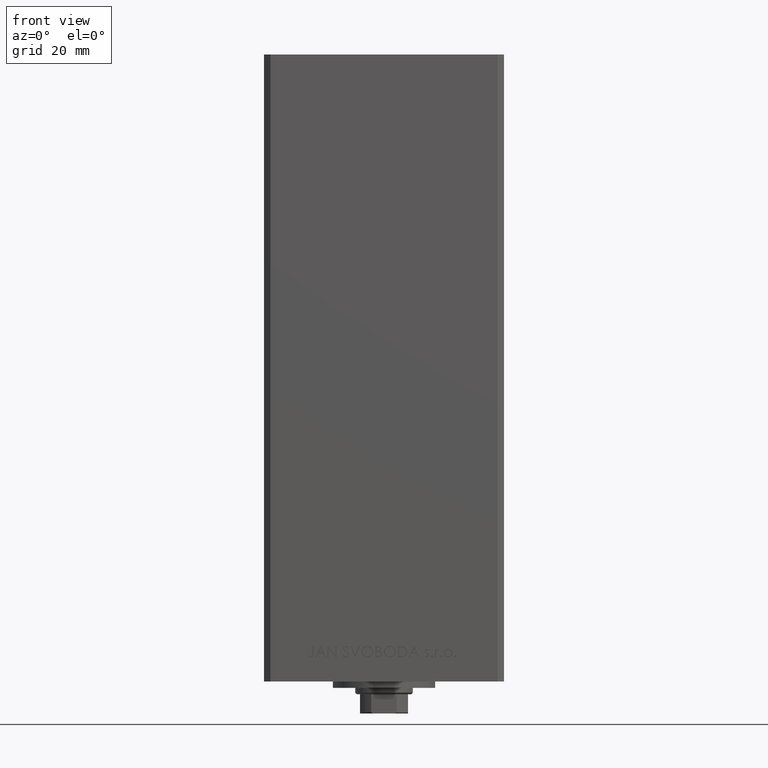
[diagram: clean part render]
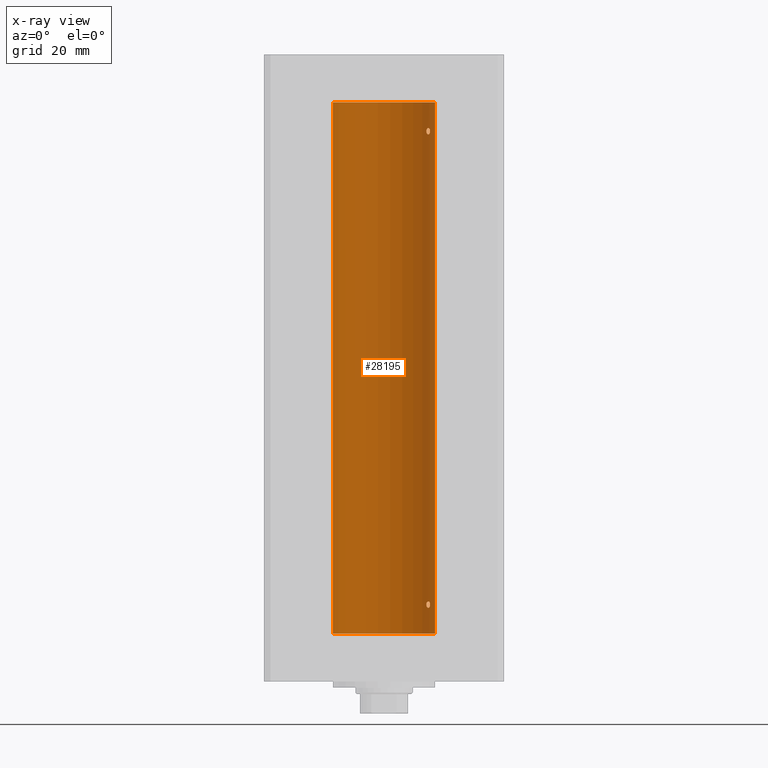
[diagram: x-ray — body ghosted, one internal face saturated and labeled with its STEP entity id]
A machine part, front view, then the same camera in x-ray: the body is ghosted and one INTERNAL B-rep face — a face not visible from any outside direction — is saturated and labeled: STEP entity #28195.
In plain terms, the highlighted cylindrical surface (partial cylindrical patch) has radius 16 mm, axis along (-0, -0, -1).
Its self-contained STEP definition (entity closure, byte-faithful):
#275 = CARTESIAN_POINT ( 'NONE',  ( -16.00000000000000000, 0.000000000000000000, 166.0000000000000000 ) ) ;
#1014 = CARTESIAN_POINT ( 'NONE',  ( 13.22875655532295447, 8.999999999999998224, 8.999999999999994671 ) ) ;
#1373 = VERTEX_POINT ( 'NONE', #17630 ) ;
#1415 = CARTESIAN_POINT ( 'NONE',  ( 13.49787029139620920, 8.591848682074017418, 8.183814587142569152 ) ) ;
#1538 = CARTESIAN_POINT ( 'NONE',  ( 14.38749456993875775, 6.999999999998771649, 156.9999999999994600 ) ) ;
#1788 = CARTESIAN_POINT ( 'NONE',  ( 14.38374727663542707, 7.007716049903077504, 156.8576079294365400 ) ) ;
#1917 = CARTESIAN_POINT ( 'NONE',  ( 14.17516445690067428, 7.421373518623910037, 8.173695665549439937 ) ) ;
#2169 = CARTESIAN_POINT ( 'NONE',  ( 14.38749456993875953, 6.999999999998769873, 8.999999999999467093 ) ) ;
#2493 = CARTESIAN_POINT ( 'NONE',  ( 0.000000000000000000, 0.000000000000000000, 0.000000000000000000 ) ) ;
#2928 = CARTESIAN_POINT ( 'NONE',  ( 13.22875655532295447, 8.999999999999996447, 156.9999999999999716 ) ) ;
#3766 = EDGE_LOOP ( 'NONE', ( #44757, #41086 ) ) ;
#4335 = ORIENTED_EDGE ( 'NONE', *, *, #7984, .F. ) ;
#5534 = CARTESIAN_POINT ( 'NONE',  ( 14.27574973237574874, 7.225997637813491359, 156.3530782107463040 ) ) ;
#5667 = CARTESIAN_POINT ( 'NONE',  ( 13.77746685470184040, 8.136441676695669756, 8.001713142955473757 ) ) ;
#5928 = CARTESIAN_POINT ( 'NONE',  ( 13.55739033881265065, 8.499771822136686694, 9.902983336413296200 ) ) ;
#6571 = FACE_BOUND ( 'NONE', #24471, .T. ) ;
#6904 = CARTESIAN_POINT ( 'NONE',  ( 14.36932461189096877, 7.037242368448794139, 8.720713977669424466 ) ) ;
#7484 = CARTESIAN_POINT ( 'NONE',  ( 14.27601081693604179, 7.225489892961972416, 157.6464466749833093 ) ) ;
#7984 = EDGE_CURVE ( 'NONE', #46283, #47138, #34308, .T. ) ;
#8546 = CARTESIAN_POINT ( 'NONE',  ( 13.32443414199769194, 8.857985377928093484, 156.4686058303161644 ) ) ;
#9039 = CARTESIAN_POINT ( 'NONE',  ( 13.22875655532295447, 8.999999999999996447, 156.9999999999999716 ) ) ;
#9157 = CARTESIAN_POINT ( 'NONE',  ( 13.25010819131475159, 8.968783812673564171, 8.717198662283735189 ) ) ;
#9381 = DIRECTION ( 'NONE',  ( 1.000000000000000000, 0.000000000000000000, 0.000000000000000000 ) ) ;
#10149 = CARTESIAN_POINT ( 'NONE',  ( 14.12440581436493225, 7.519967855344579455, 9.916845667547992349 ) ) ;
#10475 = CARTESIAN_POINT ( 'NONE',  ( 13.37722806521492203, 8.778496895713763237, 157.6404922157021815 ) ) ;
#10771 = VERTEX_POINT ( 'NONE', #40232 ) ;
#11037 = CYLINDRICAL_SURFACE ( 'NONE', #16188, 16.00000000000000000 ) ;
#11282 = EDGE_CURVE ( 'NONE', #10771, #1373, #34914, .T. ) ;
#11722 = B_SPLINE_CURVE_WITH_KNOTS ( 'NONE', 3,
 ( #21937, #29902, #44618, #14702, #7484, #33639, #49341, #26159, #33876, #10475, #41369, #18198, #30140, #33141 ),
 .UNSPECIFIED., .F., .F.,
 ( 4, 2, 2, 2, 2, 2, 4 ),
 ( 0.003377516961122441295, 0.003798778705083836419, 0.004220040449045231977, 0.005062563936968072532, 0.005905087424890913088, 0.006326349168852335100, 0.006747610912813756245 ),
 .UNSPECIFIED. ) ;
#12418 = CARTESIAN_POINT ( 'NONE',  ( 13.22875655532296157, 9.000000000000000000, 8.857026260935734641 ) ) ;
#12522 = CARTESIAN_POINT ( 'NONE',  ( 13.92009581174527355, 7.889943515799701323, 155.9984609092138044 ) ) ;
#13621 = CARTESIAN_POINT ( 'NONE',  ( 0.000000000000000000, 0.000000000000000000, 166.0000000000000000 ) ) ;
#13968 = DIRECTION ( 'NONE',  ( -0.000000000000000000, 0.000000000000000000, 1.000000000000000000 ) ) ;
#14420 = ORIENTED_EDGE ( 'NONE', *, *, #11282, .T. ) ;
#14702 = CARTESIAN_POINT ( 'NONE',  ( 14.31678893103185679, 7.143775209822727845, 157.5347800480706724 ) ) ;
#15552 = VERTEX_POINT ( 'NONE', #40019 ) ;
#16030 = CARTESIAN_POINT ( 'NONE',  ( 13.98799506618805211, 7.768796316246563194, 156.0189078186198799 ) ) ;
#16188 = AXIS2_PLACEMENT_3D ( 'NONE', #41452, #32974, #33720 ) ;
#16273 = CARTESIAN_POINT ( 'NONE',  ( 14.38749456993829057, 7.000000000000029310, 156.9292911095188288 ) ) ;
#16393 = CARTESIAN_POINT ( 'NONE',  ( 13.92009581174526822, 7.889943515799717311, 7.998460909213807035 ) ) ;
#16644 = CARTESIAN_POINT ( 'NONE',  ( 14.38749456993835807, 6.999999999999894307, 9.141106977037484427 ) ) ;
#16869 = DIRECTION ( 'NONE',  ( -0.000000000000000000, 0.000000000000000000, 1.000000000000000000 ) ) ;
#16884 = CARTESIAN_POINT ( 'NONE',  ( 13.70633586603034715, 8.255576010093811590, 8.025328610501505366 ) ) ;
#17133 = CARTESIAN_POINT ( 'NONE',  ( 14.27574973237574696, 7.225997637813494023, 8.353078210746339494 ) ) ;
#17226 = CARTESIAN_POINT ( 'NONE',  ( 16.00000000000000000, 1.959434878635765131E-15, 0.000000000000000000 ) ) ;
#17381 = CARTESIAN_POINT ( 'NONE',  ( 13.22875655532295625, 9.000000000000000000, 9.142659515501296852 ) ) ;
#17630 = CARTESIAN_POINT ( 'NONE',  ( -16.00000000000000000, 0.000000000000000000, 0.000000000000000000 ) ) ;
#18198 = CARTESIAN_POINT ( 'NONE',  ( 13.25022586032983618, 8.968609469449805971, 157.2832896389629127 ) ) ;
#18991 = B_SPLINE_CURVE_WITH_KNOTS ( 'NONE', 3,
 ( #9039, #20026, #35936, #8546, #24469, #20498, #43658, #39188, #39676, #12522, #16030, #19772, #28459, #5534, #31230, #23502, #24231, #1788, #16273, #1538 ),
 .UNSPECIFIED., .F., .F.,
 ( 4, 2, 2, 2, 2, 2, 2, 2, 2, 4 ),
 ( 2.818592028051833686E-17, 0.0004221896201403299359, 0.0008443792402806316825, 0.001266568860420933538, 0.001688758480561235176, 0.002110948100701536597, 0.002533137720841838886, 0.002955327340982140307, 0.003166422151052290801, 0.003377516961122441295 ),
 .UNSPECIFIED. ) ;
#19772 = CARTESIAN_POINT ( 'NONE',  ( 14.11701305531884465, 7.531808851198014132, 156.1073667830907539 ) ) ;
#20005 = AXIS2_PLACEMENT_3D ( 'NONE', #2493, #13968, #25683 ) ;
#20026 = CARTESIAN_POINT ( 'NONE',  ( 13.22875655532295802, 8.999999999999998224, 156.8570262609357258 ) ) ;
#20498 = CARTESIAN_POINT ( 'NONE',  ( 13.49787029139622696, 8.591848682073997878, 156.1838145871425638 ) ) ;
#20623 = EDGE_CURVE ( 'NONE', #47138, #46283, #43639, .T. ) ;
#20897 = CARTESIAN_POINT ( 'NONE',  ( 13.32447566991143439, 8.857922402414480700, 9.531438119903825168 ) ) ;
#21271 = ORIENTED_EDGE ( 'NONE', *, *, #20623, .F. ) ;
#21364 = CARTESIAN_POINT ( 'NONE',  ( 14.38374727663542707, 7.007716049903074840, 8.857607929436484895 ) ) ;
#21861 = CARTESIAN_POINT ( 'NONE',  ( 14.38749456993875953, 6.999999999998769873, 8.999999999999467093 ) ) ;
#21937 = CARTESIAN_POINT ( 'NONE',  ( 14.38749456993875775, 6.999999999998771649, 156.9999999999994600 ) ) ;
#22758 = EDGE_CURVE ( 'NONE', #27094, #1373, #38265, .T. ) ;
#23502 = CARTESIAN_POINT ( 'NONE',  ( 14.35867515080208712, 7.058999333127631282, 156.6544211985381594 ) ) ;
#23869 = CARTESIAN_POINT ( 'NONE',  ( 13.32443414199768839, 8.857985377928104143, 8.468605830316136007 ) ) ;
#24114 = CARTESIAN_POINT ( 'NONE',  ( 13.56526576050683452, 8.485384079562178883, 8.116990538131117816 ) ) ;
#24231 = CARTESIAN_POINT ( 'NONE',  ( 14.36932461189096877, 7.037242368448795915, 156.7207139776694191 ) ) ;
#24365 = CARTESIAN_POINT ( 'NONE',  ( 13.37722806521492025, 8.778496895713756132, 9.640492215702138878 ) ) ;
#24469 = CARTESIAN_POINT ( 'NONE',  ( 13.37714181818050641, 8.778635597591444295, 156.3595547667462995 ) ) ;
#24471 = EDGE_LOOP ( 'NONE', ( #21271, #4335 ) ) ;
#25100 = CARTESIAN_POINT ( 'NONE',  ( 14.31678893103186390, 7.143775209822729622, 9.534780048070684799 ) ) ;
#25163 = EDGE_CURVE ( 'NONE', #15552, #27094, #37368, .T. ) ;
#25683 = DIRECTION ( 'NONE',  ( 1.000000000000000000, 0.000000000000000000, 0.000000000000000000 ) ) ;
#26159 = CARTESIAN_POINT ( 'NONE',  ( 13.70635209652259334, 8.259251269739747769, 157.9961002086728570 ) ) ;
#26490 = FACE_OUTER_BOUND ( 'NONE', #27731, .T. ) ;
#27094 = VERTEX_POINT ( 'NONE', #17226 ) ;
#27731 = EDGE_LOOP ( 'NONE', ( #29415, #31672, #14420, #34730 ) ) ;
#28113 = CARTESIAN_POINT ( 'NONE',  ( 13.98853479819183043, 7.771757428685174496, 10.00365939203466681 ) ) ;
#28195 = ADVANCED_FACE ( 'NONE', ( #26490, #40710, #6571 ), #11037, .F. ) ;
#28459 = CARTESIAN_POINT ( 'NONE',  ( 14.17516445690067250, 7.421373518623910037, 156.1736956655494453 ) ) ;
#28715 = EDGE_CURVE ( 'NONE', #15552, #10771, #32779, .T. ) ;
#29415 = ORIENTED_EDGE ( 'NONE', *, *, #25163, .F. ) ;
#29902 = CARTESIAN_POINT ( 'NONE',  ( 14.38749456993835807, 6.999999999999900524, 157.1411069770375093 ) ) ;
#30140 = CARTESIAN_POINT ( 'NONE',  ( 13.22875655532295092, 8.999999999999994671, 157.1426595155012649 ) ) ;
#31230 = CARTESIAN_POINT ( 'NONE',  ( 14.31615587311060978, 7.145052533203036127, 156.4626987052745619 ) ) ;
#31360 = CARTESIAN_POINT ( 'NONE',  ( 13.22875655532295447, 8.999999999999998224, 8.999999999999994671 ) ) ;
#31672 = ORIENTED_EDGE ( 'NONE', *, *, #28715, .T. ) ;
#31851 = CARTESIAN_POINT ( 'NONE',  ( 13.22875655532295447, 8.999999999999998224, 8.999999999999994671 ) ) ;
#32084 = CARTESIAN_POINT ( 'NONE',  ( 14.11701305531884287, 7.531808851198022126, 8.107366783090686368 ) ) ;
#32322 = CARTESIAN_POINT ( 'NONE',  ( 14.31615587311060445, 7.145052533203043232, 8.462698705274526390 ) ) ;
#32581 = CARTESIAN_POINT ( 'NONE',  ( 13.70635209652260222, 8.259251269739738888, 9.996100208672867637 ) ) ;
#32779 = CIRCLE ( 'NONE', #35977, 16.00000000000000000 ) ;
#32829 = CARTESIAN_POINT ( 'NONE',  ( 14.37260515874679534, 7.030802976542521954, 9.282431798581109561 ) ) ;
#32974 = DIRECTION ( 'NONE',  ( -0.000000000000000000, -0.000000000000000000, -1.000000000000000000 ) ) ;
#33141 = CARTESIAN_POINT ( 'NONE',  ( 13.22875655532295447, 8.999999999999996447, 156.9999999999999716 ) ) ;
#33561 = CARTESIAN_POINT ( 'NONE',  ( 14.38749456993828879, 7.000000000000026645, 8.929291109518763037 ) ) ;
#33639 = CARTESIAN_POINT ( 'NONE',  ( 14.12440581436492515, 7.519967855344591001, 157.9168456675479888 ) ) ;
#33720 = DIRECTION ( 'NONE',  ( -1.000000000000000000, 0.000000000000000000, 0.000000000000000000 ) ) ;
#33876 = CARTESIAN_POINT ( 'NONE',  ( 13.55739033881264710, 8.499771822136690247, 157.9029833364132855 ) ) ;
#34308 = B_SPLINE_CURVE_WITH_KNOTS ( 'NONE', 3,
 ( #2169, #16644, #32829, #25100, #47310, #10149, #28113, #32581, #5928, #24365, #20897, #36079, #17381, #31851 ),
 .UNSPECIFIED., .F., .F.,
 ( 4, 2, 2, 2, 2, 2, 4 ),
 ( 0.003377516961122438259, 0.003798778705083848996, 0.004220040449045259733, 0.005062563936968083808, 0.005905087424890908751, 0.006326349168852319488, 0.006747610912813730225 ),
 .UNSPECIFIED. ) ;
#34476 = CARTESIAN_POINT ( 'NONE',  ( 14.38749456993875775, 6.999999999998771649, 156.9999999999994600 ) ) ;
#34730 = ORIENTED_EDGE ( 'NONE', *, *, #22758, .F. ) ;
#34914 = LINE ( 'NONE', #275, #49163 ) ;
#35266 = CARTESIAN_POINT ( 'NONE',  ( 14.38749456993875953, 6.999999999998769873, 8.999999999999467093 ) ) ;
#35334 = CARTESIAN_POINT ( 'NONE',  ( 13.37714181818049575, 8.778635597591465611, 8.359554766746297716 ) ) ;
#35936 = CARTESIAN_POINT ( 'NONE',  ( 13.25010819131476048, 8.968783812673557065, 156.7171986622837210 ) ) ;
#35977 = AXIS2_PLACEMENT_3D ( 'NONE', #13621, #16869, #9381 ) ;
#36079 = CARTESIAN_POINT ( 'NONE',  ( 13.25022586032984329, 8.968609469449802418, 9.283289638962903823 ) ) ;
#37368 = LINE ( 'NONE', #41609, #45525 ) ;
#38265 = CIRCLE ( 'NONE', #20005, 16.00000000000000000 ) ;
#38881 = EDGE_CURVE ( 'NONE', #43715, #41054, #18991, .T. ) ;
#39188 = CARTESIAN_POINT ( 'NONE',  ( 13.70633586603035781, 8.255576010093792050, 156.0253286105015036 ) ) ;
#39557 = CARTESIAN_POINT ( 'NONE',  ( 13.98799506618804855, 7.768796316246572964, 8.018907818619863903 ) ) ;
#39676 = CARTESIAN_POINT ( 'NONE',  ( 13.77746685470184929, 8.136441676695655545, 156.0017131429554524 ) ) ;
#40019 = CARTESIAN_POINT ( 'NONE',  ( 16.00000000000000000, 1.959434878635765131E-15, 166.0000000000000000 ) ) ;
#40232 = CARTESIAN_POINT ( 'NONE',  ( -16.00000000000000000, 0.000000000000000000, 166.0000000000000000 ) ) ;
#40710 = FACE_BOUND ( 'NONE', #3766, .T. ) ;
#40798 = CARTESIAN_POINT ( 'NONE',  ( 14.35867515080208356, 7.058999333127636611, 8.654421198538130966 ) ) ;
#41054 = VERTEX_POINT ( 'NONE', #34476 ) ;
#41086 = ORIENTED_EDGE ( 'NONE', *, *, #49332, .F. ) ;
#41369 = CARTESIAN_POINT ( 'NONE',  ( 13.32447566991143617, 8.857922402414489582, 157.5314381199037541 ) ) ;
#41452 = CARTESIAN_POINT ( 'NONE',  ( 0.000000000000000000, 0.000000000000000000, 166.0000000000000000 ) ) ;
#41609 = CARTESIAN_POINT ( 'NONE',  ( 16.00000000000000000, 1.959434878635765131E-15, 166.0000000000000000 ) ) ;
#42880 = DIRECTION ( 'NONE',  ( -0.000000000000000000, -0.000000000000000000, -1.000000000000000000 ) ) ;
#43639 = B_SPLINE_CURVE_WITH_KNOTS ( 'NONE', 3,
 ( #31360, #12418, #9157, #23869, #35334, #1415, #24114, #16884, #5667, #16393, #39557, #32084, #1917, #17133, #32322, #40798, #6904, #21364, #33561, #21861 ),
 .UNSPECIFIED., .F., .F.,
 ( 4, 2, 2, 2, 2, 2, 2, 2, 2, 4 ),
 ( 0.000000000000000000, 0.0004221896201403055413, 0.0008443792402806110826, 0.001266568860420916624, 0.001688758480561222165, 0.002110948100701527490, 0.002533137720841833248, 0.002955327340982138572, 0.003166422151052288633, 0.003377516961122438259 ),
 .UNSPECIFIED. ) ;
#43658 = CARTESIAN_POINT ( 'NONE',  ( 13.56526576050684518, 8.485384079562161119, 156.1169905381310912 ) ) ;
#43715 = VERTEX_POINT ( 'NONE', #2928 ) ;
#44618 = CARTESIAN_POINT ( 'NONE',  ( 14.37260515874679179, 7.030802976542521954, 157.2824317985811149 ) ) ;
#44757 = ORIENTED_EDGE ( 'NONE', *, *, #38881, .F. ) ;
#45525 = VECTOR ( 'NONE', #48850, 1000.000000000000000 ) ;
#46283 = VERTEX_POINT ( 'NONE', #35266 ) ;
#47138 = VERTEX_POINT ( 'NONE', #1014 ) ;
#47310 = CARTESIAN_POINT ( 'NONE',  ( 14.27601081693604712, 7.225489892961965310, 9.646446674983275571 ) ) ;
#48850 = DIRECTION ( 'NONE',  ( -0.000000000000000000, -0.000000000000000000, -1.000000000000000000 ) ) ;
#49163 = VECTOR ( 'NONE', #42880, 1000.000000000000000 ) ;
#49332 = EDGE_CURVE ( 'NONE', #41054, #43715, #11722, .T. ) ;
#49341 = CARTESIAN_POINT ( 'NONE',  ( 13.98853479819182866, 7.771757428685186042, 158.0036593920346775 ) ) ;